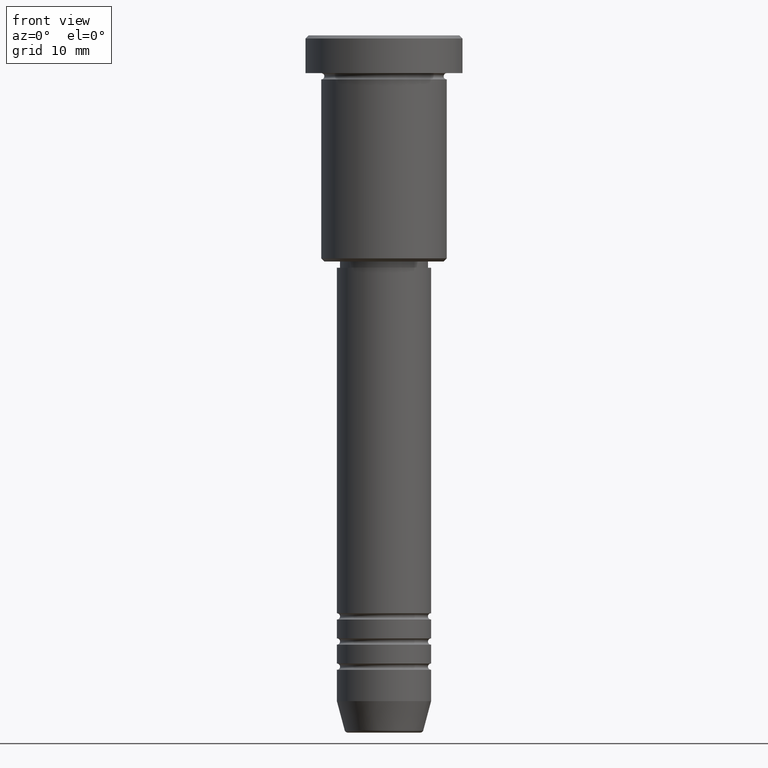
[diagram: clean part render]
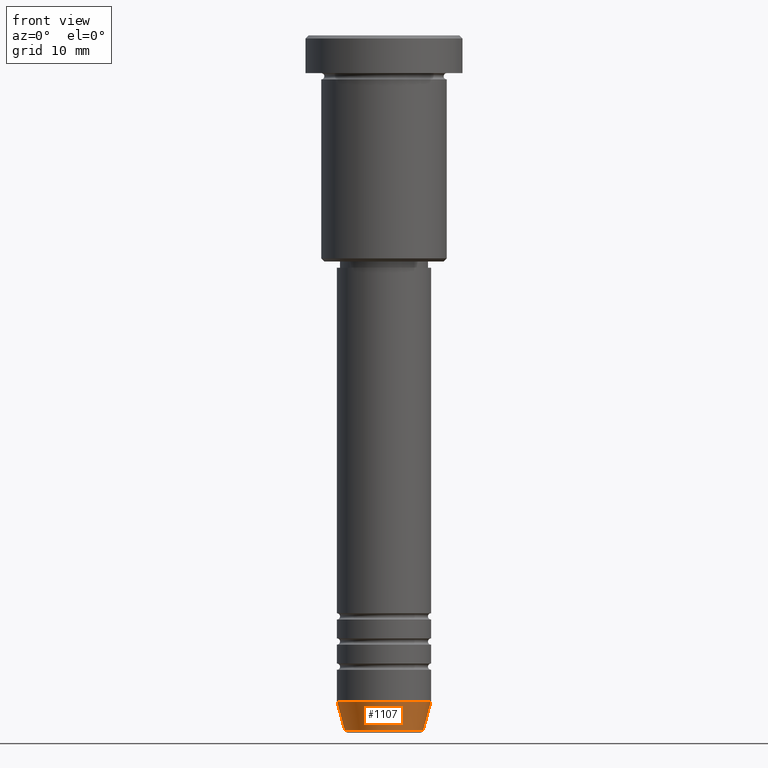
[diagram: same view with one face highlighted and labeled with its STEP entity id]
A machine part, front view. The second image highlights one B-rep face of the part: STEP entity #1107.
In plain terms, the highlighted conical surface has half-angle 15 deg.
Its self-contained STEP definition (entity closure, byte-faithful):
#8 = CIRCLE ( 'NONE', #843, 6.259553456999438659 ) ;
#39 = CARTESIAN_POINT ( 'NONE',  ( -6.259553456999438659, 8.425296549405629486E-16, -110.6294095225512564 ) ) ;
#40 = CARTESIAN_POINT ( 'NONE',  ( -7.500000000000000000, 9.184850993605147944E-16, -106.0000000000000000 ) ) ;
#97 = VECTOR ( 'NONE', #503, 1000.000000000000000 ) ;
#99 = EDGE_CURVE ( 'NONE', #800, #1059, #490, .T. ) ;
#122 = AXIS2_PLACEMENT_3D ( 'NONE', #1158, #892, #873 ) ;
#152 = EDGE_CURVE ( 'NONE', #1057, #1059, #602, .T. ) ;
#170 = ORIENTED_EDGE ( 'NONE', *, *, #99, .F. ) ;
#173 = EDGE_CURVE ( 'NONE', #560, #1057, #8, .T. ) ;
#239 = DIRECTION ( 'NONE',  ( -0.000000000000000000, -0.000000000000000000, 1.000000000000000000 ) ) ;
#305 = LINE ( 'NONE', #668, #97 ) ;
#382 = AXIS2_PLACEMENT_3D ( 'NONE', #938, #1036, #735 ) ;
#401 = CARTESIAN_POINT ( 'NONE',  ( 0.000000000000000000, 0.000000000000000000, -110.6294095225512564 ) ) ;
#435 = CARTESIAN_POINT ( 'NONE',  ( 7.500000000000000000, 0.000000000000000000, -106.0000000000000000 ) ) ;
#484 = CARTESIAN_POINT ( 'NONE',  ( 7.500000000000000000, 0.000000000000000000, -106.0000000000000000 ) ) ;
#490 = CIRCLE ( 'NONE', #122, 7.500000000000000000 ) ;
#503 = DIRECTION ( 'NONE',  ( -0.2588190451025213501, 3.169619151431772337E-17, 0.9659258262890680902 ) ) ;
#521 = EDGE_LOOP ( 'NONE', ( #1181, #733, #555, #170 ) ) ;
#555 = ORIENTED_EDGE ( 'NONE', *, *, #152, .T. ) ;
#559 = EDGE_CURVE ( 'NONE', #560, #800, #305, .T. ) ;
#560 = VERTEX_POINT ( 'NONE', #39 ) ;
#593 = DIRECTION ( 'NONE',  ( 0.2588190451025213501, 0.000000000000000000, 0.9659258262890680902 ) ) ;
#602 = LINE ( 'NONE', #484, #727 ) ;
#666 = CONICAL_SURFACE ( 'NONE', #382, 7.500000000000000000, 0.2617993877991500740 ) ;
#668 = CARTESIAN_POINT ( 'NONE',  ( -7.500000000000000000, 9.184850993605147944E-16, -106.0000000000000000 ) ) ;
#727 = VECTOR ( 'NONE', #593, 1000.000000000000000 ) ;
#733 = ORIENTED_EDGE ( 'NONE', *, *, #173, .T. ) ;
#735 = DIRECTION ( 'NONE',  ( 1.000000000000000000, 0.000000000000000000, 0.000000000000000000 ) ) ;
#770 = DIRECTION ( 'NONE',  ( 1.000000000000000000, 0.000000000000000000, 0.000000000000000000 ) ) ;
#800 = VERTEX_POINT ( 'NONE', #40 ) ;
#843 = AXIS2_PLACEMENT_3D ( 'NONE', #401, #239, #770 ) ;
#856 = FACE_OUTER_BOUND ( 'NONE', #521, .T. ) ;
#873 = DIRECTION ( 'NONE',  ( 1.000000000000000000, 0.000000000000000000, 0.000000000000000000 ) ) ;
#892 = DIRECTION ( 'NONE',  ( -0.000000000000000000, -0.000000000000000000, 1.000000000000000000 ) ) ;
#938 = CARTESIAN_POINT ( 'NONE',  ( 0.000000000000000000, 0.000000000000000000, -106.0000000000000000 ) ) ;
#1036 = DIRECTION ( 'NONE',  ( -0.000000000000000000, -0.000000000000000000, 1.000000000000000000 ) ) ;
#1057 = VERTEX_POINT ( 'NONE', #1096 ) ;
#1059 = VERTEX_POINT ( 'NONE', #435 ) ;
#1096 = CARTESIAN_POINT ( 'NONE',  ( 6.259553456999438659, 0.000000000000000000, -110.6294095225512564 ) ) ;
#1107 = ADVANCED_FACE ( 'NONE', ( #856 ), #666, .T. ) ;
#1158 = CARTESIAN_POINT ( 'NONE',  ( 0.000000000000000000, 0.000000000000000000, -106.0000000000000000 ) ) ;
#1181 = ORIENTED_EDGE ( 'NONE', *, *, #559, .F. ) ;